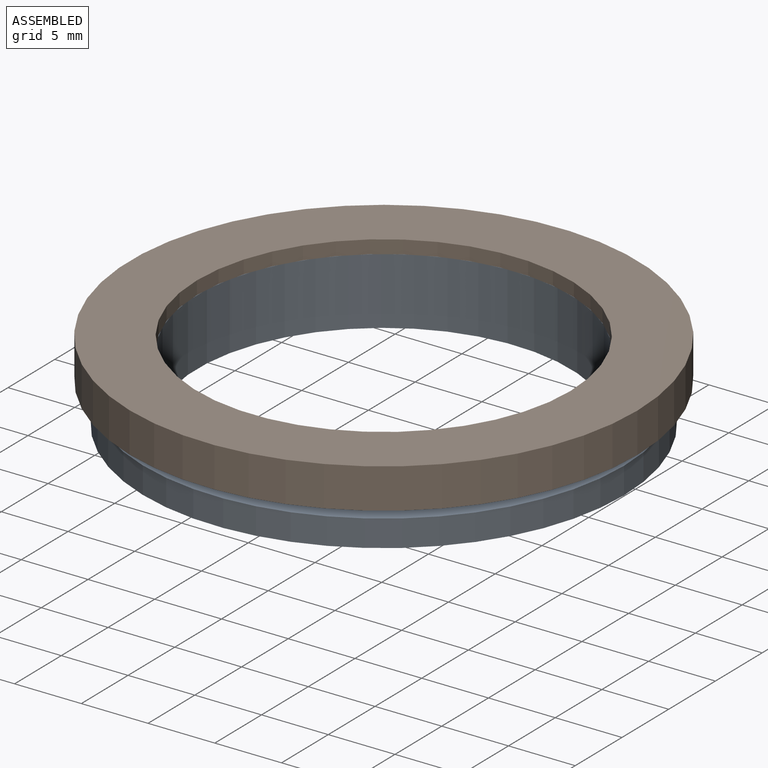
[diagram: assembled view]
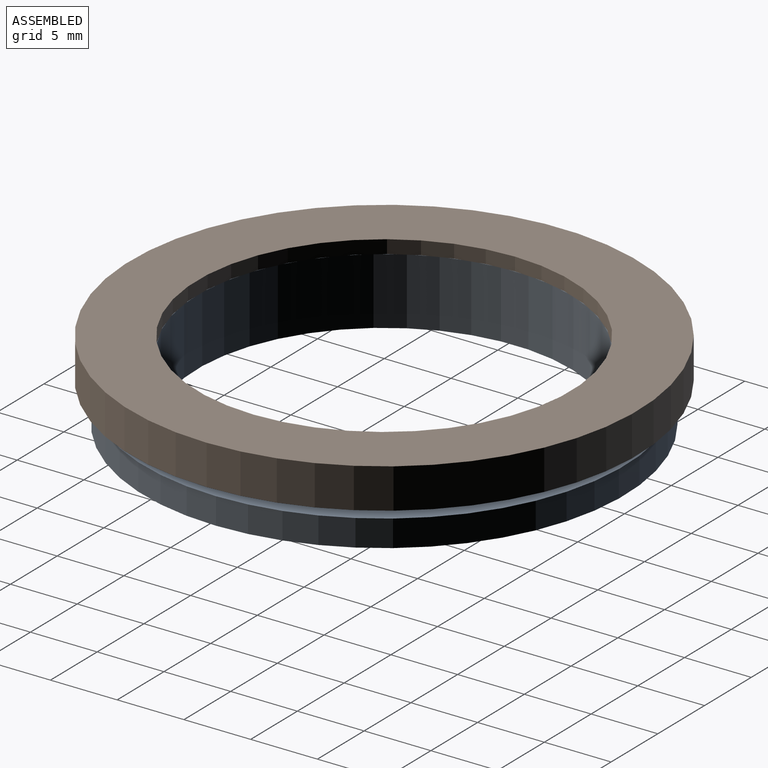
[diagram: assembled view, second angle]
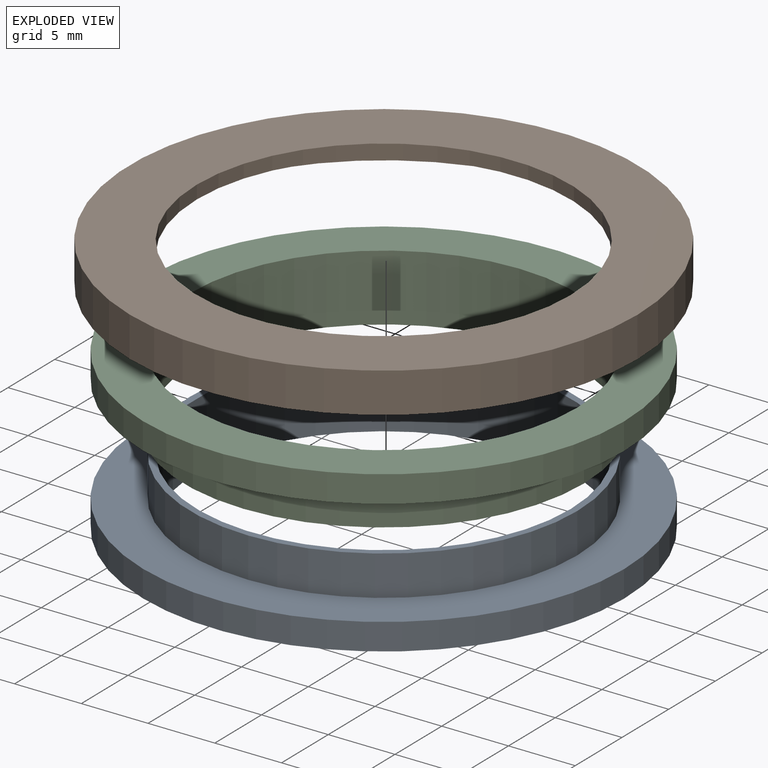
[diagram: exploded view]
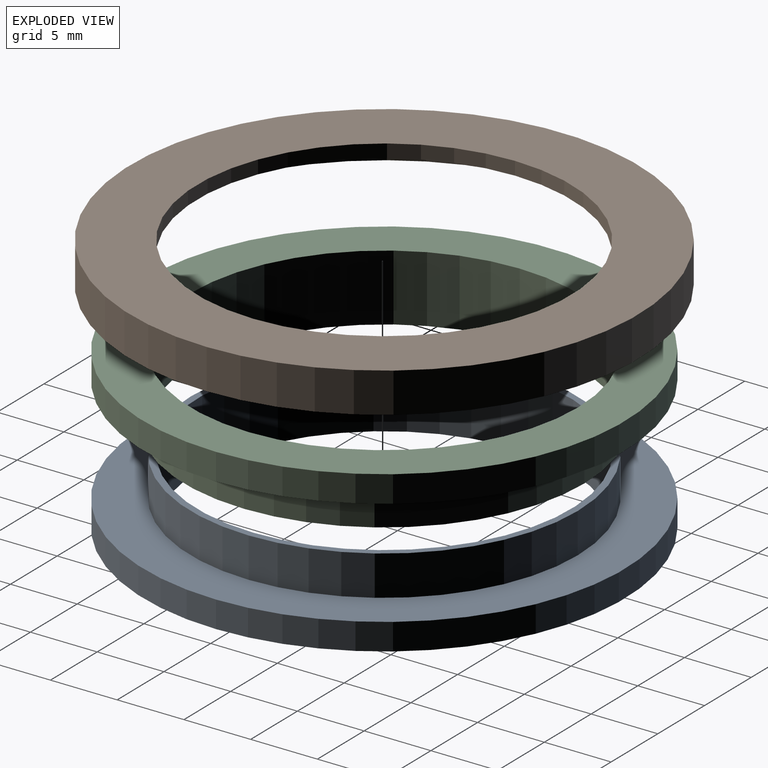
[diagram: exploded view, second angle]
ASSEMBLY  parts=3 mates=2
PART A: 6 faces, bbox 36x36x5 mm
  f0: cylinder r=14mm len=28mm, axis (0,0,1), area 439.8mm2, adj f2,f4
  f1: cylinder r=14.5mm len=29mm, axis (0,0,1), area 273.3mm2, adj f2,f5
  f2: plane 29x29mm, normal (0,0,-1), area 44.8mm2, adj f0,f1
  f3: cylinder r=18mm len=36mm, axis (0,0,-1), area 226.2mm2, adj f4,f5
  f4: plane 36x36mm, normal (0,0,1), area 402.1mm2, adj f0,f3
  f5: plane 36x36mm, normal (0,0,-1), area 357.4mm2, adj f1,f3
PART B: 6 faces, bbox 38x38x3 mm
  f0: plane 36x36mm, normal (0,0,-1), area 402.1mm2, adj f2,f4
  f1: cylinder r=19mm len=38mm, axis (0,0,-1), area 358.1mm2, adj f3,f5
  f2: cylinder r=14mm len=28mm, axis (0,0,-1), area 88mm2, adj f0,f3
  f3: plane 38x38mm, normal (0,0,1), area 518.4mm2, adj f1,f2
  f4: cylinder r=18mm len=36mm, axis (0,0,1), area 226.2mm2, adj f0,f5
  f5: plane 38x38mm, normal (0,0,-1), area 116.2mm2, adj f1,f4
PART C: 6 faces, bbox 36x36x5 mm
  f0: cylinder r=14.5mm len=29mm, axis (0,0,-1), area 455.5mm2, adj f2,f5
  f1: cylinder r=18mm len=36mm, axis (0,0,-1), area 226.2mm2, adj f2,f3
  f2: plane 36x36mm, normal (0,0,1), area 357.4mm2, adj f0,f1
  f3: plane 36x36mm, normal (0,0,-1), area 311mm2, adj f1,f4
  f4: cylinder r=15mm len=30mm, axis (0,0,1), area 282.7mm2, adj f3,f5
  f5: plane 30x30mm, normal (0,0,-1), area 46.3mm2, adj f0,f4
PLACE A rot(axis=(1,0,0),180deg) t=(-28.42,-14.9,3.28)mm
PLACE B t=(-28.42,-14.9,6.28)mm
PLACE C t=(-28.42,-14.9,4.28)mm
MATE fastened A.f0 <-> C.f0  axis (0,0,1) through (-28.42,-14.9,6.28)mm
MATE fastened B.f2 <-> C.f1  axis (0,0,-1) through (-28.42,-14.9,6.28)mm
